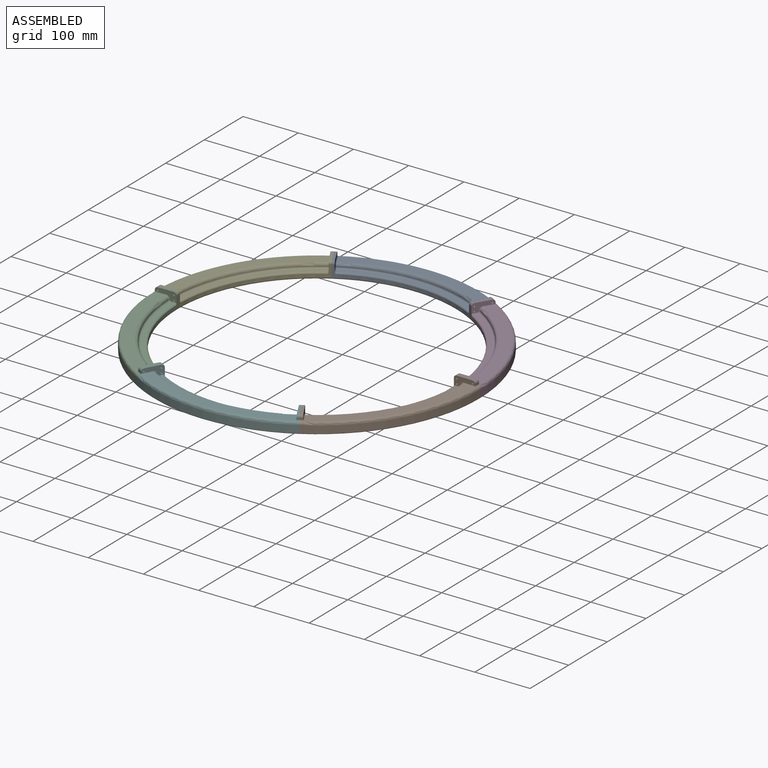
[diagram: assembled view]
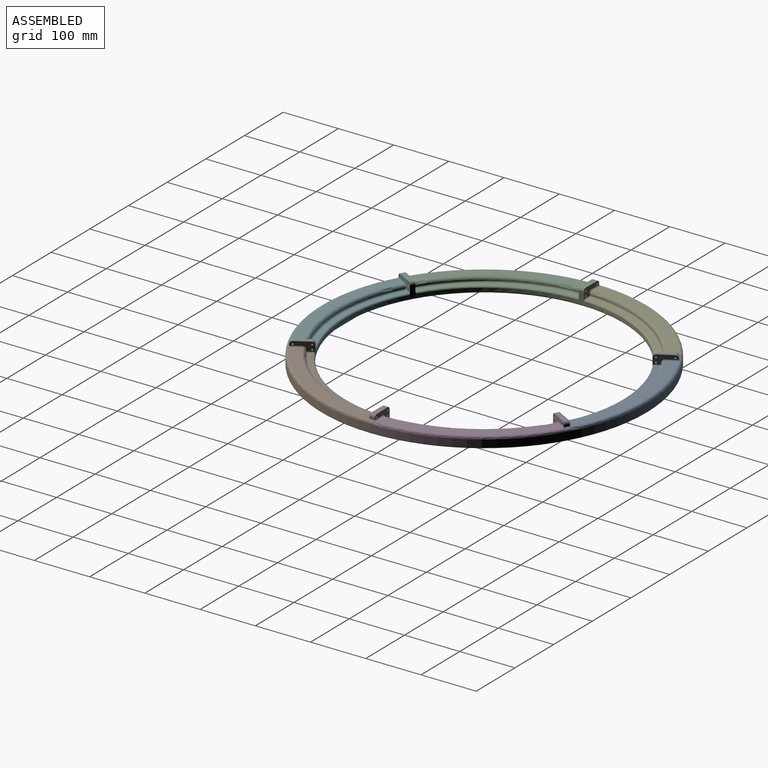
[diagram: assembled view, second angle]
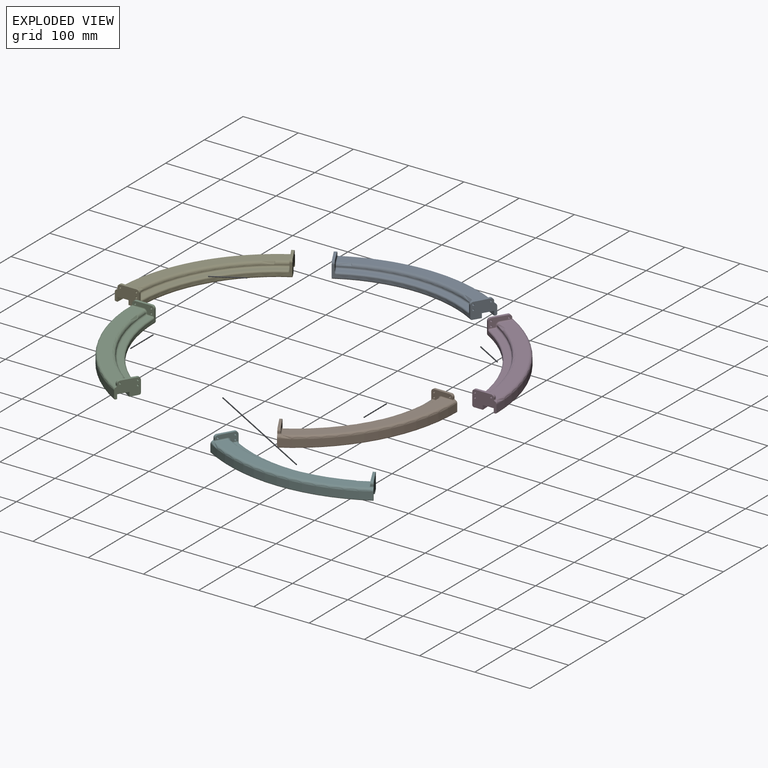
[diagram: exploded view]
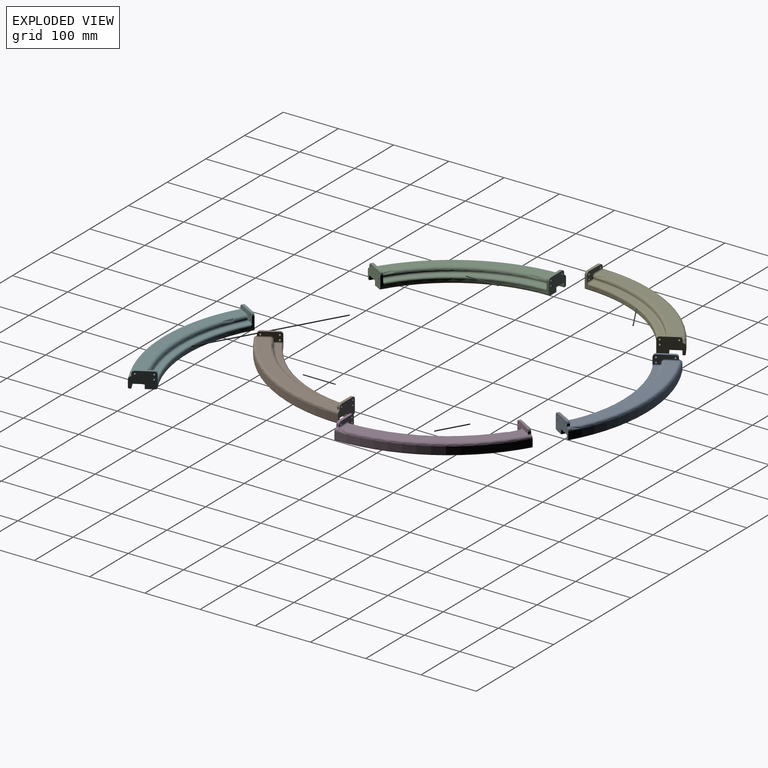
[diagram: exploded view, second angle]
ASSEMBLY  parts=6 mates=5
PART A: 51 faces, bbox 193.8x276.5x29.3 mm
  f0: cylinder r=290.04mm len=4.38mm, axis (0,0,1), area 13.3mm2, adj f1,f8,f9,f40,f42
  f1: torus R=285.04mm, axis (0,0,1), area 39.5mm2, adj f0,f2,f8,f9
  f2: plane 27.42x18.81mm, normal (0,0,1), area 137.1mm2, adj f1,f3,f8,f9
  f3: torus R=256mm, axis (0,0,1), area 34.7mm2, adj f2,f4,f8,f9
  f4: cylinder r=251mm len=217.37mm, axis (0,0,1), area 1492mm2, adj f3,f8,f9,f14,f18,f19,f22,f23
  f5: torus R=256mm, axis (0,0,1), area 42.1mm2, adj f8,f9
  f6: torus R=285.04mm, axis (0,0,1), area 46.9mm2, adj f8,f9
  f7: torus R=256mm, axis (0,0,1), area 42.1mm2, adj f8,f9
  f8: plane 33.47x20.11mm, normal (0.86,-0.52,0), area 370.6mm2, adj f0,f1,f2,f3,f4,f5,f6,f7
  f9: plane 38.11x29.33mm, normal (-0.87,0.5,0), area 1043.5mm2, adj f0,f1,f2,f3,f4,f5,f6,f7
  f10: torus R=262mm, axis (0,0,1), area 1240mm2, adj f24,f25,f37,f45
  f11: cylinder r=290.04mm len=5.09mm, axis (0,0,1), area 13.3mm2, adj f12,f18,f19,f48,f50
  f12: torus R=285.04mm, axis (0,0,1), area 39.5mm2, adj f11,f13,f18,f19
  f13: plane 29.08x4.97mm, normal (0,0,1), area 137.1mm2, adj f12,f14,f18,f19
  f14: torus R=256mm, axis (0,0,1), area 34.7mm2, adj f4,f13,f18,f19
  f15: torus R=256mm, axis (0,0,1), area 42.1mm2, adj f18,f19
  f16: torus R=285.04mm, axis (0,0,1), area 46.9mm2, adj f18,f19
  f17: torus R=256mm, axis (0,0,1), area 42.1mm2, adj f18,f19
  f18: plane 39.04x17.1mm, normal (-0.02,1,0), area 370.6mm2, adj f4,f11,f12,f13,f14,f15,f16,f17
  f19: plane 44x29.33mm, normal (0,-1,0), area 1043.5mm2, adj f4,f11,f12,f13,f14,f15,f16,f17
  f20: torus R=290mm, axis (0,0,1), area 2390.4mm2, adj f9,f19,f27,f28,f40,f42,f48,f50
  f21: cone r=253.97mm half-angle=89.5deg, axis (0,0,-1), area 3553.5mm2, adj f9,f19,f22,f34
  f22: torus R=254mm, axis (0,0,1), area 1237mm2, adj f4,f9,f19,f21
  f23: torus R=254mm, axis (0,0,1), area 1183.7mm2, adj f4,f24,f35,f43
  f24: plane 217.11x129.39mm, normal (0,0,1), area 2057.4mm2, adj f10,f23,f36,f44
  f25: cylinder r=265mm len=219.47mm, axis (0,0,1), area 205.1mm2, adj f10,f26,f38,f46
  f26: torus R=270mm, axis (0,0,1), area 2089.9mm2, adj f25,f27,f39,f47
  f27: plane 240.83x149.14mm, normal (0,0,1), area 5588.8mm2, adj f20,f26,f41,f49
  f28: cylinder r=295mm len=255.48mm, axis (0,0,1), area 4016mm2, adj f9,f19,f20,f29
  f29: torus R=293mm, axis (0,0,1), area 968.1mm2, adj f9,f19,f28,f30
  f30: plane 253.75x148mm, normal (0,0,-1), area 915.8mm2, adj f9,f19,f29,f31
  f31: cylinder r=290mm len=251.15mm, axis (0,0,1), area 2429.5mm2, adj f9,f19,f30,f32
  f32: plane 251.15x155mm, normal (0,0,-1), area 5864.3mm2, adj f9,f19,f31,f33
  f33: cylinder r=270mm len=233.83mm, axis (0,0,1), area 2261.9mm2, adj f9,f19,f32,f34
  f34: plane 233.83x136.5mm, normal (0,0,-1), area 843.5mm2, adj f9,f19,f21,f33
  f35: bspline ~5.86x5.25mm, area 12.5mm2, adj f4,f8,f23,f36
  f36: cylinder r=2mm len=7.89mm, axis (-0.52,-0.86,0), area 25.1mm2, adj f8,f24,f35,f37
  f37: bspline ~4.19x3.62mm, area 11.3mm2, adj f8,f10,f36,f38
  f38: cylinder r=2mm len=2.76mm, axis (0,0,1), area 2.4mm2, adj f8,f25,f37,f39
  f39: bspline ~8.56x7.34mm, area 28.3mm2, adj f8,f26,f38,f41
  f40: torus R=292.04mm, axis (0,0,1), area 15.5mm2, adj f0,f9,f20,f42
  f41: cylinder r=2mm len=18.17mm, axis (-0.52,-0.86,0), area 62.8mm2, adj f8,f27,f39,f42
  f42: bspline ~3.62x3.07mm, area 1.6mm2, adj f0,f8,f20,f40,f41
  f43: bspline ~6.12x5.86mm, area 12.5mm2, adj f4,f18,f23,f44
  f44: cylinder r=2mm len=8.03mm, axis (-1,-0.02,0), area 25.1mm2, adj f18,f24,f43,f45
  f45: bspline ~3.72x3.17mm, area 11.3mm2, adj f10,f18,f44,f46
  f46: cylinder r=2mm len=2.05mm, axis (0,0,1), area 2.4mm2, adj f18,f25,f45,f47
  f47: bspline ~8.56x7.4mm, area 28.3mm2, adj f18,f26,f46,f49
  f48: torus R=292.04mm, axis (0,0,-1), area 15.5mm2, adj f11,f19,f20,f50
  f49: cylinder r=2mm len=20.03mm, axis (-1,-0.02,0), area 62.8mm2, adj f18,f27,f47,f50
  f50: bspline ~3.3x2.28mm, area 1.6mm2, adj f11,f18,f20,f48,f49
PART B: same geometry as A
PART C: same geometry as A
PART D: same geometry as A
PART E: same geometry as A
PART F: same geometry as A
PLACE A rot(axis=(0,0,1),60deg) t=(-723.49,-132.14,137.16)mm
PLACE B rot(axis=(0,0,-1),60deg) t=(-723.49,-132.14,137.16)mm
PLACE C rot(axis=(0,0,-1),180deg) t=(-723.49,-132.14,137.16)mm
PLACE D t=(-723.49,-132.14,137.16)mm
PLACE E rot(axis=(0,0,1),120deg) t=(-723.49,-132.14,137.16)mm
PLACE F rot(axis=(0,0,-1),120deg) t=(-723.49,-132.14,137.16)mm
MATE fastened A.f9 <-> E.f19  axis (-0.87,-0.5,0) through (-866.01,114.71,153.49)mm
MATE fastened B.f9 <-> D.f19  axis (0,1,0) through (-438.45,-132.14,153.49)mm
MATE fastened A.f19 <-> D.f9  axis (0.87,-0.5,0) through (-580.97,114.71,153.49)mm
MATE fastened C.f9 <-> F.f19  axis (0.87,-0.5,0) through (-866.01,-378.99,153.49)mm
MATE fastened E.f9 <-> C.f19  axis (0,-1,0) through (-1008.53,-132.14,153.49)mm
